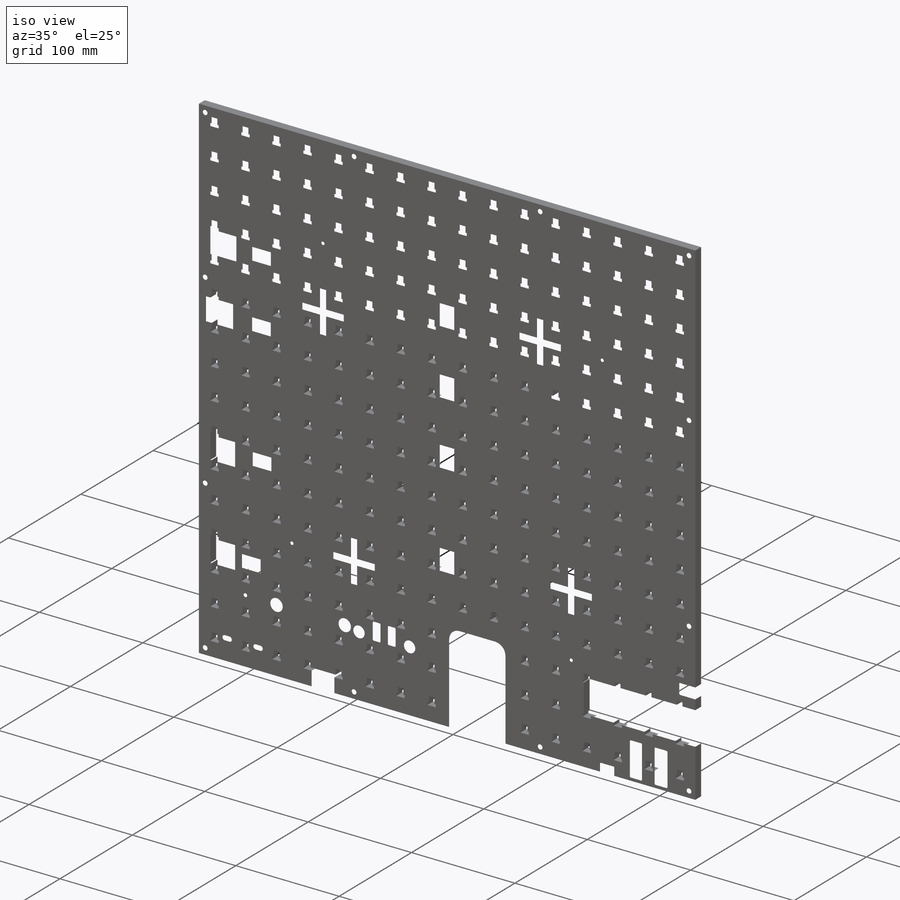
[diagram: iso view]
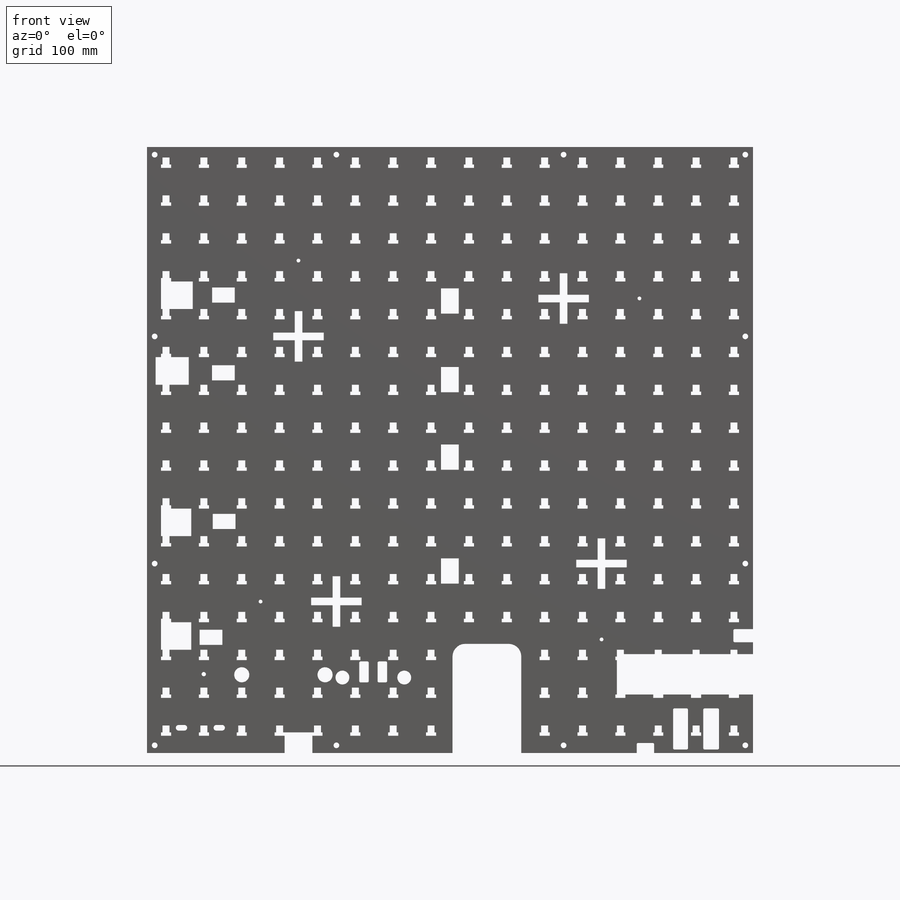
[diagram: front view]
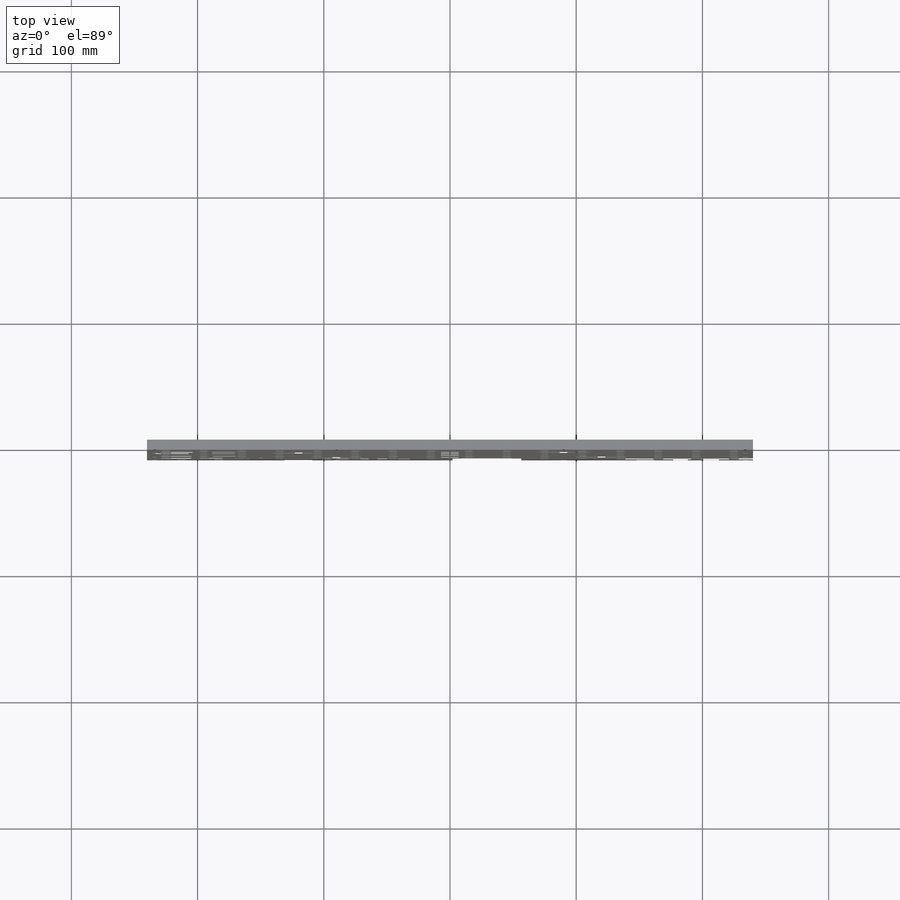
[diagram: top view]
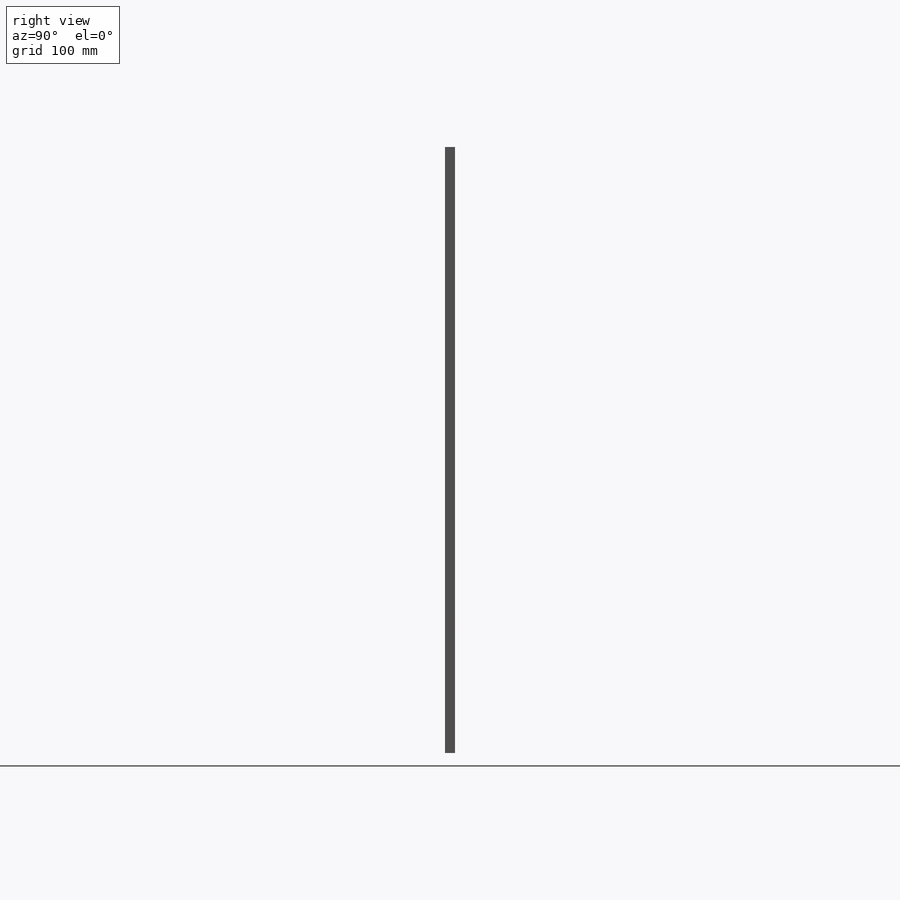
[diagram: right view]
SOLIDWORKS PART (.sldprt)
format: sldprt  version: not decoded by parser v0  size: 4,674,560 bytes
history: native  units: mm
features: sketch x10, cut_extrude x8, material x1, extrude x1, pattern_linear x1, pattern_circular x1 (+16 scaffold rows collapsed)
feature tree (38):
  scaffold x16  (default folders/planes/origin — collapsed)
  material  "Material <not specified>"
  sketch  "Sketch1"  dims[D1=480.2mm]
  extrude  "Boss-Extrude1"  Depth=8mm
  sketch  "Sketch5"  dims[c1.D1=8.0mm c1.D2=2.5mm c1.D3=15.1mm c1.D4=15.1mm c1.D5=5.5mm c1.D6=1.5mm c1.D7=1.25mm c1.D8=2.5mm c2.D2=2.7mm]
  cut_extrude  "Cut-Extrude2"  [1 undecoded]
  pattern_linear  "LPattern2"  Count1=16 Count2=16 Spacing1=30mm Spacing2=30mm
  sketch  "Sketch4"  dims[c1.D1=4.5mm c1.D2=4.5mm c1.D4=4.5mm c2.D2=6.1mm c2.D3=180.0mm c2.D4=12.25mm]
  cut_extrude  "Cut-Extrude1"  [1 undecoded]
  sketch  "Sketch8"  dims[c1.D1=40.0mm c1.D2=6.0mm c1.D3=150.0mm c1.D4=150.0mm c2.D3=90.0mm c2.D4=120.0mm]
  cut_extrude  "Cut-Extrude4"  [1 undecoded]
  sketch  "Sketch13"  dims[D1=3.0mm D2=120.0mm D3=90.0mm]
  cut_extrude  "Cut-Extrude7"  [1 undecoded]
  pattern_circular  "CirPattern1"  Count=4 Angle=360deg
  sketch  "Sketch9"
  sketch  "Sketch7"  dims[c1.D1=12.0mm c1.D4=1.0mm c1.D5=11.0mm c1.D6=1.0mm c1.D7=12.0mm c2.D1=12.0mm c2.D2=12.0mm c2.D3=12.0mm c3.D1=~10.982014mm c4.D1=45.0deg c4.D5=~61.376001mm c4.D6=~91.700548mm c4.D7=~63.65891mm c4.D8=46.35mm c4.D2=20.0mm c4.D3=14.0mm c4.D9=3.0mm c4.D10=240.0mm c4.D11=115.0mm c5.D8=66.0mm c5.D12=9.0mm c5.D13=16.0mm c5.D14=24.0mm c5.D15=7.2mm c5.D16=7.6mm c6.D12=32.0mm c6.D13=75.1mm c6.D14=62.0mm]
  cut_extrude  "Cut-Extrude3"  [1 undecoded]
  sketch  "Sketch10"  dims[D1=18.0mm D2=24.0mm D3=12.0mm D4=6.6mm D5=6.0mm]
  cut_extrude  "Cut-Extrude5"  [1 undecoded]
  sketch  "Sketch11"  dims[D4=10.0mm D1=86.5mm D2=54.5mm D3=18.0mm]
  cut_extrude  "Cut-Extrude6"  [1 undecoded]
  sketch  "Sketch14"  dims[c1.D1=4.5mm c1.D2=2.0mm c1.D4=4.5mm c1.D5=4.5mm c1.D7=4.5mm c1.D9=3.4mm c2.D2=20.0mm c2.D3=30.6mm c2.D5=31.0mm c2.D6=56.0mm c2.D8=43.3mm c3.D3=42.3mm c3.D6=29.9mm c3.D8=~16.600341mm c3.D10=45.0mm c3.D11=42.5mm]
  cut_extrude  "Cut-Extrude8"  [1 undecoded]
decode coverage: 12 of 21 modeling features carry decoded parameters
note: ~ marks probable driven/reference dimensions
note: 8 parameter values undecoded
summary: no parameter record found for 8 features
note: suppression state not decoded; provenance and decode notes live in map.json
